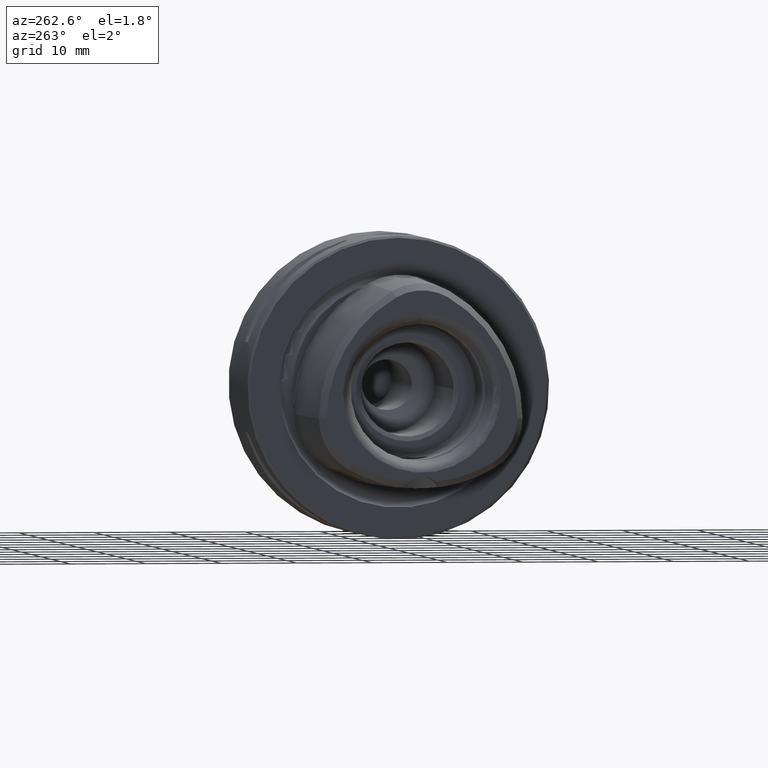
[diagram: clean part render]
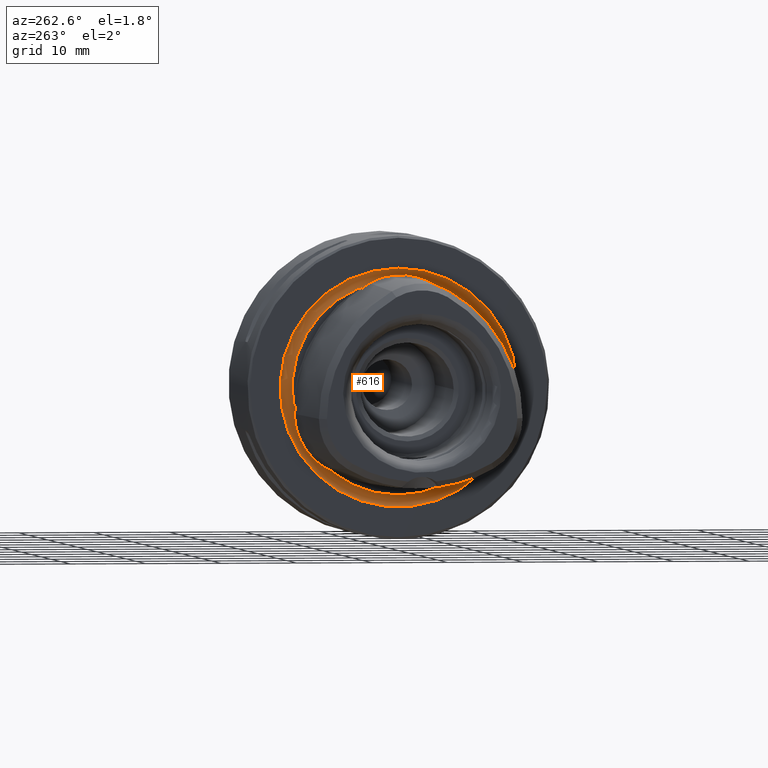
[diagram: same view with one face highlighted and labeled with its STEP entity id]
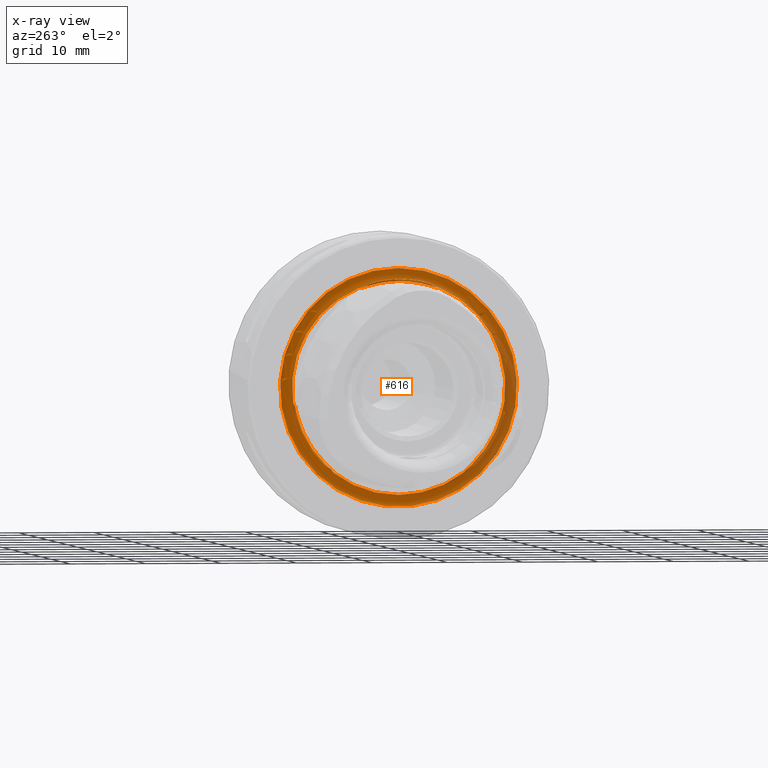
[diagram: x-ray of the same camera — body ghosted, the highlighted face saturated]
A machine part, auxiliary view. The second image highlights one B-rep face of the part: STEP entity #616.
The next image is the same camera in x-ray: the body ghosted, the highlighted face saturated — about 25% of this face is hidden behind the body in this view.
In plain terms, the highlighted toroidal blend (fillet) surface has major radius 15 mm and minor (blend) radius 1 mm.
Its self-contained STEP definition (entity closure, byte-faithful):
#616 = ADVANCED_FACE( '', ( #1280, #1281 ), #1282, .F. );
#1280 = FACE_OUTER_BOUND( '', #1951, .T. );
#1281 = FACE_OUTER_BOUND( '', #1952, .T. );
#1282 = TOROIDAL_SURFACE( '', #1953, 15.0000000000000, 1.00000000000000 );
#1951 = EDGE_LOOP( '', ( #3130, #3131, #3132, #3133, #3134, #3135, #3136, #3137, #3138, #3139, #3140, #3141, #3142, #3143, #3144, #3145, #3146, #3147, #3148, #3149, #3150, #3151, #3152, #3153, #3154, #3155, #3156, #3157, #3158, #3159 ) );
#1952 = EDGE_LOOP( '', ( #3160 ) );
#1953 = AXIS2_PLACEMENT_3D( '', #3161, #3162, #3163 );
#3130 = ORIENTED_EDGE( '', *, *, #3417, .F. );
#3131 = ORIENTED_EDGE( '', *, *, #3825, .F. );
#3132 = ORIENTED_EDGE( '', *, *, #3826, .F. );
#3133 = ORIENTED_EDGE( '', *, *, #3646, .F. );
#3134 = ORIENTED_EDGE( '', *, *, #3827, .F. );
#3135 = ORIENTED_EDGE( '', *, *, #3459, .F. );
#3136 = ORIENTED_EDGE( '', *, *, #3641, .T. );
#3137 = ORIENTED_EDGE( '', *, *, #3461, .F. );
#3138 = ORIENTED_EDGE( '', *, *, #3828, .F. );
#3139 = ORIENTED_EDGE( '', *, *, #3644, .F. );
#3140 = ORIENTED_EDGE( '', *, *, #3815, .F. );
#3141 = ORIENTED_EDGE( '', *, *, #3829, .F. );
#3142 = ORIENTED_EDGE( '', *, *, #3559, .F. );
#3143 = ORIENTED_EDGE( '', *, *, #3830, .F. );
#3144 = ORIENTED_EDGE( '', *, *, #3635, .F. );
#3145 = ORIENTED_EDGE( '', *, *, #3742, .F. );
#3146 = ORIENTED_EDGE( '', *, *, #3622, .T. );
#3147 = ORIENTED_EDGE( '', *, *, #3743, .F. );
#3148 = ORIENTED_EDGE( '', *, *, #3637, .F. );
#3149 = ORIENTED_EDGE( '', *, *, #3831, .F. );
#3150 = ORIENTED_EDGE( '', *, *, #3720, .F. );
#3151 = ORIENTED_EDGE( '', *, *, #3726, .F. );
#3152 = ORIENTED_EDGE( '', *, *, #3466, .F. );
#3153 = ORIENTED_EDGE( '', *, *, #3619, .F. );
#3154 = ORIENTED_EDGE( '', *, *, #3585, .F. );
#3155 = ORIENTED_EDGE( '', *, *, #3734, .F. );
#3156 = ORIENTED_EDGE( '', *, *, #3832, .T. );
#3157 = ORIENTED_EDGE( '', *, *, #3735, .F. );
#3158 = ORIENTED_EDGE( '', *, *, #3587, .F. );
#3159 = ORIENTED_EDGE( '', *, *, #3618, .F. );
#3160 = ORIENTED_EDGE( '', *, *, #3781, .T. );
#3161 = CARTESIAN_POINT( '', ( -0.600000000000000, 0.000000000000000, 0.000000000000000 ) );
#3162 = DIRECTION( '', ( -1.00000000000000, 0.000000000000000, 0.000000000000000 ) );
#3163 = DIRECTION( '', ( 0.000000000000000, 0.000000000000000, 1.00000000000000 ) );
#3417 = EDGE_CURVE( '', #3916, #3918, #3919, .T. );
#3459 = EDGE_CURVE( '', #3985, #3987, #3988, .T. );
#3461 = EDGE_CURVE( '', #3989, #3984, #3991, .T. );
#3466 = EDGE_CURVE( '', #3998, #3999, #4000, .T. );
#3559 = EDGE_CURVE( '', #4151, #4152, #4153, .T. );
#3585 = EDGE_CURVE( '', #4191, #4194, #4195, .T. );
#3587 = EDGE_CURVE( '', #4196, #4192, #4198, .T. );
#3618 = EDGE_CURVE( '', #3918, #4196, #4243, .T. );
#3619 = EDGE_CURVE( '', #4194, #3998, #4244, .T. );
#3622 = EDGE_CURVE( '', #4247, #4248, #4249, .T. );
#3635 = EDGE_CURVE( '', #4265, #4268, #4269, .T. );
#3637 = EDGE_CURVE( '', #4270, #4266, #4272, .T. );
#3641 = EDGE_CURVE( '', #3985, #3984, #4277, .T. );
#3644 = EDGE_CURVE( '', #4279, #4282, #4283, .T. );
#3646 = EDGE_CURVE( '', #4284, #4286, #4287, .T. );
#3720 = EDGE_CURVE( '', #4393, #4395, #4396, .T. );
#3726 = EDGE_CURVE( '', #3999, #4393, #4404, .T. );
#3734 = EDGE_CURVE( '', #4413, #4191, #4415, .T. );
#3735 = EDGE_CURVE( '', #4192, #4412, #4416, .T. );
#3742 = EDGE_CURVE( '', #4247, #4265, #4423, .T. );
#3743 = EDGE_CURVE( '', #4266, #4248, #4424, .T. );
#3781 = EDGE_CURVE( '', #4470, #4470, #4471, .T. );
#3815 = EDGE_CURVE( '', #4510, #4279, #4512, .T. );
#3825 = EDGE_CURVE( '', #4522, #3916, #4523, .T. );
#3826 = EDGE_CURVE( '', #4286, #4522, #4524, .T. );
#3827 = EDGE_CURVE( '', #3987, #4284, #4525, .T. );
#3828 = EDGE_CURVE( '', #4282, #3989, #4526, .T. );
#3829 = EDGE_CURVE( '', #4152, #4510, #4527, .T. );
#3830 = EDGE_CURVE( '', #4268, #4151, #4528, .T. );
#3831 = EDGE_CURVE( '', #4395, #4270, #4529, .T. );
#3832 = EDGE_CURVE( '', #4413, #4412, #4530, .T. );
#3916 = VERTEX_POINT( '', #4618 );
#3918 = VERTEX_POINT( '', #4623 );
#3919 = B_SPLINE_CURVE_WITH_KNOTS( '', 3, ( #4624, #4625, #4626, #4627 ), .UNSPECIFIED., .F., .F., ( 4, 4 ), ( 9.33628242778295E-007, 0.000208921527100443 ), .UNSPECIFIED. );
#3984 = VERTEX_POINT( '', #4920 );
#3985 = VERTEX_POINT( '', #4921 );
#3987 = VERTEX_POINT( '', #4923 );
#3988 = B_SPLINE_CURVE_WITH_KNOTS( '', 3, ( #4924, #4925, #4926, #4927 ), .UNSPECIFIED., .F., .F., ( 4, 4 ), ( 5.71224646423285E-007, 2.92105468877673E-005 ), .UNSPECIFIED. );
#3989 = VERTEX_POINT( '', #4928 );
#3991 = B_SPLINE_CURVE_WITH_KNOTS( '', 3, ( #4930, #4931, #4932, #4933 ), .UNSPECIFIED., .F., .F., ( 4, 4 ), ( 5.58141744954306E-007, 2.91974639862881E-005 ), .UNSPECIFIED. );
#3998 = VERTEX_POINT( '', #4940 );
#3999 = VERTEX_POINT( '', #4941 );
#4000 = B_SPLINE_CURVE_WITH_KNOTS( '', 3, ( #4942, #4943, #4944, #4945 ), .UNSPECIFIED., .F., .F., ( 4, 4 ), ( 2.06699946779758E-007, 0.000208194856561779 ), .UNSPECIFIED. );
#4151 = VERTEX_POINT( '', #5255 );
#4152 = VERTEX_POINT( '', #5256 );
#4153 = B_SPLINE_CURVE_WITH_KNOTS( '', 3, ( #5257, #5258, #5259, #5260 ), .UNSPECIFIED., .F., .F., ( 4, 4 ), ( 5.35187895235768E-006, 0.000213340008543988 ), .UNSPECIFIED. );
#4191 = VERTEX_POINT( '', #5314 );
#4192 = VERTEX_POINT( '', #5315 );
#4194 = VERTEX_POINT( '', #5317 );
#4195 = B_SPLINE_CURVE_WITH_KNOTS( '', 3, ( #5318, #5319, #5320, #5321 ), .UNSPECIFIED., .F., .F., ( 4, 4 ), ( 4.90671286945036E-007, 0.000557014854143242 ), .UNSPECIFIED. );
#4196 = VERTEX_POINT( '', #5322 );
#4198 = B_SPLINE_CURVE_WITH_KNOTS( '', 3, ( #5324, #5325, #5326, #5327 ), .UNSPECIFIED., .F., .F., ( 4, 4 ), ( 6.68459506126783E-007, 0.000557192642370131 ), .UNSPECIFIED. );
#4243 = B_SPLINE_CURVE_WITH_KNOTS( '', 3, ( #5395, #5396, #5397, #5398, #5399, #5400, #5401, #5402, #5403, #5404, #5405, #5406, #5407, #5408, #5409, #5410 ), .UNSPECIFIED., .F., .F., ( 4, 2, 2, 2, 2, 2, 2, 4 ), ( 5.27534257230583E-006, 0.000439431182513446, 0.000873587022454585, 0.00109066494242516, 0.00130774286239573, 0.00141628182238101, 0.00152482078236630, 0.00174189870233687 ), .UNSPECIFIED. );
#4244 = B_SPLINE_CURVE_WITH_KNOTS( '', 3, ( #5411, #5412, #5413, #5414, #5415, #5416, #5417, #5418, #5419, #5420, #5421, #5422, #5423, #5424, #5425, #5426 ), .UNSPECIFIED., .F., .F., ( 4, 2, 2, 2, 2, 2, 2, 4 ), ( 3.31038130401016E-007, 0.000221185428670260, 0.000331612623940190, 0.000442039819210119, 0.000662894209749979, 0.000883748600289838, 0.00132545738136956, 0.00176716616244927 ), .UNSPECIFIED. );
#4247 = VERTEX_POINT( '', #5429 );
#4248 = VERTEX_POINT( '', #5430 );
#4249 = CIRCLE( '', #5431, 14.1339745962156 );
#4265 = VERTEX_POINT( '', #5450 );
#4266 = VERTEX_POINT( '', #5451 );
#4268 = VERTEX_POINT( '', #5453 );
#4269 = B_SPLINE_CURVE_WITH_KNOTS( '', 3, ( #5454, #5455, #5456, #5457 ), .UNSPECIFIED., .F., .F., ( 4, 4 ), ( 4.90671279800562E-007, 0.000557014854140371 ), .UNSPECIFIED. );
#4270 = VERTEX_POINT( '', #5458 );
#4272 = B_SPLINE_CURVE_WITH_KNOTS( '', 3, ( #5460, #5461, #5462, #5463 ), .UNSPECIFIED., .F., .F., ( 4, 4 ), ( 6.68459481472196E-007, 0.000557192642370148 ), .UNSPECIFIED. );
#4277 = CIRCLE( '', #5468, 14.1339745962156 );
#4279 = VERTEX_POINT( '', #5470 );
#4282 = VERTEX_POINT( '', #5474 );
#4283 = B_SPLINE_CURVE_WITH_KNOTS( '', 3, ( #5475, #5476, #5477, #5478, #5479, #5480, #5481, #5482, #5483, #5484, #5485, #5486, #5487, #5488, #5489, #5490 ), .UNSPECIFIED., .F., .F., ( 4, 2, 2, 2, 2, 2, 2, 4 ), ( 2.05285835831506E-007, 0.000435090445997375, 0.000869975606158918, 0.00108741818623969, 0.00130486076632046, 0.00141358205636085, 0.00152230334640123, 0.00173974592648201 ), .UNSPECIFIED. );
#4284 = VERTEX_POINT( '', #5491 );
#4286 = VERTEX_POINT( '', #5493 );
#4287 = B_SPLINE_CURVE_WITH_KNOTS( '', 3, ( #5494, #5495, #5496, #5497, #5498, #5499, #5500, #5501, #5502, #5503, #5504, #5505, #5506, #5507, #5508, #5509 ), .UNSPECIFIED., .F., .F., ( 4, 2, 2, 2, 2, 2, 2, 4 ), ( 3.31038112697755E-007, 0.000221187629629145, 0.000331615925387369, 0.000442044221145593, 0.000662900812662039, 0.000883757404178485, 0.00132547058721138, 0.00176718377024427 ), .UNSPECIFIED. );
#4393 = VERTEX_POINT( '', #5671 );
#4395 = VERTEX_POINT( '', #5676 );
#4396 = B_SPLINE_CURVE_WITH_KNOTS( '', 3, ( #5677, #5678, #5679, #5680 ), .UNSPECIFIED., .F., .F., ( 4, 4 ), ( 0.00829155263950419, 0.00849941306684054 ), .UNSPECIFIED. );
#4404 = CIRCLE( '', #5689, 14.2928932188134 );
#4412 = VERTEX_POINT( '', #5703 );
#4413 = VERTEX_POINT( '', #5704 );
#4415 = B_SPLINE_CURVE_WITH_KNOTS( '', 3, ( #5706, #5707, #5708, #5709 ), .UNSPECIFIED., .F., .F., ( 4, 4 ), ( 5.71224646883351E-007, 2.92105469043718E-005 ), .UNSPECIFIED. );
#4416 = B_SPLINE_CURVE_WITH_KNOTS( '', 3, ( #5710, #5711, #5712, #5713 ), .UNSPECIFIED., .F., .F., ( 4, 4 ), ( 5.58141744956783E-007, 2.91974639863128E-005 ), .UNSPECIFIED. );
#4423 = B_SPLINE_CURVE_WITH_KNOTS( '', 3, ( #5726, #5727, #5728, #5729 ), .UNSPECIFIED., .F., .F., ( 4, 4 ), ( 5.71224646879371E-007, 2.92105469148465E-005 ), .UNSPECIFIED. );
#4424 = B_SPLINE_CURVE_WITH_KNOTS( '', 3, ( #5730, #5731, #5732, #5733 ), .UNSPECIFIED., .F., .F., ( 4, 4 ), ( 5.58141744953117E-007, 2.91974639862801E-005 ), .UNSPECIFIED. );
#4470 = VERTEX_POINT( '', #5891 );
#4471 = CIRCLE( '', #5892, 15.7071067811866 );
#4510 = VERTEX_POINT( '', #5937 );
#4512 = B_SPLINE_CURVE_WITH_KNOTS( '', 3, ( #5942, #5943, #5944, #5945 ), .UNSPECIFIED., .F., .F., ( 4, 4 ), ( 9.33664659199684E-007, 0.000208921821304730 ), .UNSPECIFIED. );
#4522 = VERTEX_POINT( '', #5955 );
#4523 = CIRCLE( '', #5956, 14.2928932188134 );
#4524 = B_SPLINE_CURVE_WITH_KNOTS( '', 3, ( #5957, #5958, #5959, #5960 ), .UNSPECIFIED., .F., .F., ( 4, 4 ), ( 1.44976899243437E-005, 0.000222485588788982 ), .UNSPECIFIED. );
#4525 = B_SPLINE_CURVE_WITH_KNOTS( '', 3, ( #5961, #5962, #5963, #5964 ), .UNSPECIFIED., .F., .F., ( 4, 4 ), ( 4.90671300599114E-007, 0.000557014854185001 ), .UNSPECIFIED. );
#4526 = B_SPLINE_CURVE_WITH_KNOTS( '', 3, ( #5965, #5966, #5967, #5968 ), .UNSPECIFIED., .F., .F., ( 4, 4 ), ( 6.68459504508361E-007, 0.000557192642370113 ), .UNSPECIFIED. );
#4527 = CIRCLE( '', #5969, 14.2928932188134 );
#4528 = B_SPLINE_CURVE_WITH_KNOTS( '', 3, ( #5970, #5971, #5972, #5973, #5974, #5975, #5976, #5977, #5978, #5979, #5980, #5981, #5982, #5983, #5984, #5985 ), .UNSPECIFIED., .F., .F., ( 4, 2, 2, 2, 2, 2, 2, 4 ), ( 3.31038131724524E-007, 0.000221191615043825, 0.000331621903499875, 0.000442052191955925, 0.000662912768868024, 0.000883773345780123, 0.00132549449960432, 0.00176721565342852 ), .UNSPECIFIED. );
#4529 = B_SPLINE_CURVE_WITH_KNOTS( '', 3, ( #5986, #5987, #5988, #5989, #5990, #5991, #5992, #5993, #5994, #5995, #5996, #5997, #5998, #5999, #6000, #6001 ), .UNSPECIFIED., .F., .F., ( 4, 2, 2, 2, 2, 2, 2, 4 ), ( 1.45002943954960E-005, 0.000448871561745037, 0.000883242829094578, 0.00110042846276935, 0.00131761409644412, 0.00142620691328150, 0.00153479973011888, 0.00175198536379365 ), .UNSPECIFIED. );
#4530 = CIRCLE( '', #6002, 14.1339745962156 );
#4618 = CARTESIAN_POINT( '', ( -1.30710678118655, 3.83711151640159, 13.7682014720552 ) );
#4623 = CARTESIAN_POINT( '', ( -1.25860495762130, 4.01411838885947, 13.6703484507252 ) );
#4624 = CARTESIAN_POINT( '', ( -1.30710678118660, 3.83711151640161, 13.7682014720552 ) );
#4625 = CARTESIAN_POINT( '', ( -1.29224973577150, 3.89678710707447, 13.7361470268337 ) );
#4626 = CARTESIAN_POINT( '', ( -1.27618524792274, 3.95580576346401, 13.7035077167449 ) );
#4627 = CARTESIAN_POINT( '', ( -1.25860495762128, 4.01411838885946, 13.6703484507252 ) );
#4920 = CARTESIAN_POINT( '', ( -0.100000000000000, -14.0061484399330, -1.89658739978658 ) );
#4921 = CARTESIAN_POINT( '', ( -0.0999999999999981, -5.36058135125385, 13.0779740580510 ) );
#4923 = CARTESIAN_POINT( '', ( -0.110143799932860, -5.38257401105697, 13.0626888686132 ) );
#4924 = CARTESIAN_POINT( '', ( -0.0999999999999879, -5.36058135125386, 13.0779740580511 ) );
#4925 = CARTESIAN_POINT( '', ( -0.103343192888210, -5.36792813814522, 13.0728766055121 ) );
#4926 = CARTESIAN_POINT( '', ( -0.106723774843390, -5.37525923766450, 13.0677813943338 ) );
#4927 = CARTESIAN_POINT( '', ( -0.110143799932852, -5.38257401105698, 13.0626888686132 ) );
#4928 = CARTESIAN_POINT( '', ( -0.110143799932862, -14.0039074074797, -1.86989860298139 ) );
#4930 = CARTESIAN_POINT( '', ( -0.110143799932852, -14.0039074074797, -1.86989860298139 ) );
#4931 = CARTESIAN_POINT( '', ( -0.106723774843390, -14.0046602774270, -1.87877964542249 ) );
#4932 = CARTESIAN_POINT( '', ( -0.103343192888205, -14.0054073099854, -1.88767616943299 ) );
#4933 = CARTESIAN_POINT( '', ( -0.0999999999999837, -14.0061484399330, -1.89658739978657 ) );
#4940 = CARTESIAN_POINT( '', ( -1.25860495762905, 13.8459282313428, -3.35884572684161 ) );
#4941 = CARTESIAN_POINT( '', ( -1.30710678118655, 13.8421679974229, -3.56106468567000 ) );
#4942 = CARTESIAN_POINT( '', ( -1.25860495762903, 13.8459282313428, -3.35884572684161 ) );
#4943 = CARTESIAN_POINT( '', ( -1.27618594567218, 13.8454886679437, -3.42592823712986 ) );
#4944 = CARTESIAN_POINT( '', ( -1.29225029445901, 13.8442457507581, -3.49335943164933 ) );
#4945 = CARTESIAN_POINT( '', ( -1.30710678118659, 13.8421679974229, -3.56106468566999 ) );
#5255 = CARTESIAN_POINT( '', ( -1.25860495762127, -9.83180984248346, -10.3115027239132 ) );
#5256 = CARTESIAN_POINT( '', ( -1.30710678118655, -10.0050564810213, -10.2071367863852 ) );
#5257 = CARTESIAN_POINT( '', ( -1.25860495762462, -9.83180984248320, -10.3115027239143 ) );
#5258 = CARTESIAN_POINT( '', ( -1.27618569509088, -9.88968439396029, -10.2775812791806 ) );
#5259 = CARTESIAN_POINT( '', ( -1.29225009381330, -9.94746010987455, -10.2427892820683 ) );
#5260 = CARTESIAN_POINT( '', ( -1.30710678118659, -10.0050564810213, -10.2071367863852 ) );
#5314 = CARTESIAN_POINT( '', ( -0.110143799938644, 14.0039074074785, -1.86989860296635 ) );
#5315 = CARTESIAN_POINT( '', ( -0.110143799932866, 5.38257401105700, 13.0626888686132 ) );
#5317 = CARTESIAN_POINT( '', ( -0.299999999993735, 13.8449612072687, -2.36830596139360 ) );
#5318 = CARTESIAN_POINT( '', ( -0.110143799932649, 14.0039074074794, -1.86989860296893 ) );
#5319 = CARTESIAN_POINT( '', ( -0.185739680158362, 13.9399633572454, -2.02784880291634 ) );
#5320 = CARTESIAN_POINT( '', ( -0.244490629325768, 13.8919256888756, -2.19728882859324 ) );
#5321 = CARTESIAN_POINT( '', ( -0.299999999994039, 13.8449612072685, -2.36830596139342 ) );
#5322 = CARTESIAN_POINT( '', ( -0.299999999999359, 4.87146747711596, 13.1742411006061 ) );
#5324 = CARTESIAN_POINT( '', ( -0.299999999999664, 4.87146747711601, 13.1742411006058 ) );
#5325 = CARTESIAN_POINT( '', ( -0.244490629331036, 5.04305489940915, 13.1294049683522 ) );
#5326 = CARTESIAN_POINT( '', ( -0.185739680163260, 5.21381310025044, 13.0862867966596 ) );
#5327 = CARTESIAN_POINT( '', ( -0.110143799937174, 5.38257401105750, 13.0626888686081 ) );
#5395 = CARTESIAN_POINT( '', ( -1.25860495762130, 4.01411838885947, 13.6703484507252 ) );
#5396 = CARTESIAN_POINT( '', ( -1.22166144012630, 4.13665751987133, 13.6006670118345 ) );
#5397 = CARTESIAN_POINT( '', ( -1.18057766244981, 4.25706957747254, 13.5305752802980 ) );
#5398 = CARTESIAN_POINT( '', ( -1.08502957140298, 4.49212906750069, 13.3909279127406 ) );
#5399 = CARTESIAN_POINT( '', ( -1.03131292460054, 4.60700812486416, 13.3211904813246 ) );
#5400 = CARTESIAN_POINT( '', ( -0.928082404441620, 4.77115616492069, 13.2201600590080 ) );
#5401 = CARTESIAN_POINT( '', ( -0.889276428300953, 4.82523705869248, 13.1866234793369 ) );
#5402 = CARTESIAN_POINT( '', ( -0.798409141487318, 4.92299560129053, 13.1260417199157 ) );
#5403 = CARTESIAN_POINT( '', ( -0.745405457561452, 4.96910032875316, 13.0974257158757 ) );
#5404 = CARTESIAN_POINT( '', ( -0.644671225565459, 5.01071465013178, 13.0730657487877 ) );
#5405 = CARTESIAN_POINT( '', ( -0.607561649012590, 5.01906340682050, 13.0686647022981 ) );
#5406 = CARTESIAN_POINT( '', ( -0.532356163542984, 5.01845135412066, 13.0713209100849 ) );
#5407 = CARTESIAN_POINT( '', ( -0.495675768244874, 5.00952166312593, 13.0783141776245 ) );
#5408 = CARTESIAN_POINT( '', ( -0.397103663194222, 4.96723173075851, 13.1090665182288 ) );
#5409 = CARTESIAN_POINT( '', ( -0.344924782331514, 4.92106153304456, 13.1408394610733 ) );
#5410 = CARTESIAN_POINT( '', ( -0.299999999994616, 4.87146747711951, 13.1742411006035 ) );
#5411 = CARTESIAN_POINT( '', ( -0.299999999998950, 13.8449612072630, -2.36830596139895 ) );
#5412 = CARTESIAN_POINT( '', ( -0.344487199720072, 13.8408717909624, -2.30923644573940 ) );
#5413 = CARTESIAN_POINT( '', ( -0.396023056860594, 13.8364927026044, -2.25393764446260 ) );
#5414 = CARTESIAN_POINT( '', ( -0.493420572462156, 13.8310233430339, -2.20169454383302 ) );
#5415 = CARTESIAN_POINT( '', ( -0.529450687120095, 13.8294338542718, -2.19021630897708 ) );
#5416 = CARTESIAN_POINT( '', ( -0.603941700938255, 13.8273911146160, -2.18724450056732 ) );
#5417 = CARTESIAN_POINT( '', ( -0.640788775481964, 13.8269904771349, -2.19593394028276 ) );
#5418 = CARTESIAN_POINT( '', ( -0.741076582444953, 13.8271729737622, -2.24205582570963 ) );
#5419 = CARTESIAN_POINT( '', ( -0.794758970874236, 13.8288632333133, -2.29565513382129 ) );
#5420 = CARTESIAN_POINT( '', ( -0.886981249812997, 13.8324564572561, -2.41098231564201 ) );
#5421 = CARTESIAN_POINT( '', ( -0.925175880385749, 13.8344243106087, -2.47323828879490 ) );
#5422 = CARTESIAN_POINT( '', ( -1.02882620984226, 13.8398545386680, -2.66517762488817 ) );
#5423 = CARTESIAN_POINT( '', ( -1.08356887421970, 13.8428837803155, -2.80128314112201 ) );
#5424 = CARTESIAN_POINT( '', ( -1.18019212268346, 13.8463551208104, -3.07716315391317 ) );
#5425 = CARTESIAN_POINT( '', ( -1.22151603287420, 13.8468555360989, -3.21732818696721 ) );
#5426 = CARTESIAN_POINT( '', ( -1.25860495762908, 13.8459282313428, -3.35884572684160 ) );
#5429 = CARTESIAN_POINT( '', ( -0.0999999999999982, -8.64556708867916, -11.1813866582645 ) );
#5430 = CARTESIAN_POINT( '', ( -0.100000000000002, 8.64556708867914, -11.1813866582645 ) );
#5431 = AXIS2_PLACEMENT_3D( '', #6360, #6361, #6362 );
#5450 = CARTESIAN_POINT( '', ( -0.110143799942403, -8.62133339640029, -11.1927902656424 ) );
#5451 = CARTESIAN_POINT( '', ( -0.110143799932862, 8.62133339642278, -11.1927902656318 ) );
#5453 = CARTESIAN_POINT( '', ( -0.299999999992854, -8.97349373013338, -10.8059351392099 ) );
#5454 = CARTESIAN_POINT( '', ( -0.110143799929729, -8.62133339640778, -11.1927902656430 ) );
#5455 = CARTESIAN_POINT( '', ( -0.185739680156549, -8.72615025697828, -11.0584379937445 ) );
#5456 = CARTESIAN_POINT( '', ( -0.244490629324413, -8.84887078944842, -10.9321161397582 ) );
#5457 = CARTESIAN_POINT( '', ( -0.299999999993164, -8.97349373013312, -10.8059351392098 ) );
#5458 = CARTESIAN_POINT( '', ( -0.300000000006746, 8.97349373016456, -10.8059351391783 ) );
#5460 = CARTESIAN_POINT( '', ( -0.300000000007057, 8.97349373016431, -10.8059351391783 ) );
#5461 = CARTESIAN_POINT( '', ( -0.244490629336429, 8.84887078947276, -10.9321161397327 ) );
#5462 = CARTESIAN_POINT( '', ( -0.185739680166622, 8.72615025699558, -11.0584379937248 ) );
#5463 = CARTESIAN_POINT( '', ( -0.110143799937192, 8.62133339641813, -11.1927902656297 ) );
#5468 = AXIS2_PLACEMENT_3D( '', #6387, #6388, #6389 );
#5470 = CARTESIAN_POINT( '', ( -1.25860495762131, -13.8459282313430, -3.35884572681208 ) );
#5474 = CARTESIAN_POINT( '', ( -0.299999999999846, -13.8449612072635, -2.36830596141246 ) );
#5475 = CARTESIAN_POINT( '', ( -1.25860495762190, -13.8459282313432, -3.35884572681185 ) );
#5476 = CARTESIAN_POINT( '', ( -1.22159182754922, -13.8468536410652, -3.21761739125171 ) );
#5477 = CARTESIAN_POINT( '', ( -1.18042544210585, -13.8463547196578, -3.07803961820259 ) );
#5478 = CARTESIAN_POINT( '', ( -1.08466021530325, -13.8429316514212, -2.80419175376783 ) );
#5479 = CARTESIAN_POINT( '', ( -1.03081734855054, -13.8399653020331, -2.66962545162527 ) );
#5480 = CARTESIAN_POINT( '', ( -0.927262002730452, -13.8345305215735, -2.47673776499577 ) );
#5481 = CARTESIAN_POINT( '', ( -0.888380430899844, -13.8325244122542, -2.41311925709312 ) );
#5482 = CARTESIAN_POINT( '', ( -0.796758379030415, -13.8289281864286, -2.29778234677577 ) );
#5483 = CARTESIAN_POINT( '', ( -0.743349689156993, -13.8272008321430, -2.24352434464022 ) );
#5484 = CARTESIAN_POINT( '', ( -0.641642294475334, -13.8269805141700, -2.19612105471761 ) );
#5485 = CARTESIAN_POINT( '', ( -0.604865602745500, -13.8273765524917, -2.18738857832354 ) );
#5486 = CARTESIAN_POINT( '', ( -0.530591272395451, -13.8293920980810, -2.18999482915802 ) );
#5487 = CARTESIAN_POINT( '', ( -0.494182700815961, -13.8309860631506, -2.20138621176629 ) );
#5488 = CARTESIAN_POINT( '', ( -0.396426231636096, -13.8364591889802, -2.25352339506645 ) );
#5489 = CARTESIAN_POINT( '', ( -0.344653437646617, -13.8408565098014, -2.30901571723369 ) );
#5490 = CARTESIAN_POINT( '', ( -0.300000000000116, -13.8449612072634, -2.36830596141273 ) );
#5491 = CARTESIAN_POINT( '', ( -0.300000000005473, -4.87146747709706, 13.1742411006110 ) );
#5493 = CARTESIAN_POINT( '', ( -1.25860495762195, -4.01411838885728, 13.6703484507264 ) );
#5494 = CARTESIAN_POINT( '', ( -0.299999999988244, -4.87146747711405, 13.1742411006072 ) );
#5495 = CARTESIAN_POINT( '', ( -0.344487643055983, -4.92057895954227, 13.1411644747444 ) );
#5496 = CARTESIAN_POINT( '', ( -0.396024077641149, -4.96628004051935, 13.1097223505531 ) );
#5497 = CARTESIAN_POINT( '', ( -0.493422973968408, -5.00878906213683, 13.0788642504654 ) );
#5498 = CARTESIAN_POINT( '', ( -0.529453728333556, -5.01793451152903, 13.0717487398784 ) );
#5499 = CARTESIAN_POINT( '', ( -0.603945340902678, -5.01948584696183, 13.0684943840574 ) );
#5500 = CARTESIAN_POINT( '', ( -0.640792694368079, -5.01175962557576, 13.0724925470800 ) );
#5501 = CARTESIAN_POINT( '', ( -0.741080737880834, -4.97190649061446, 13.0957126157173 ) );
#5502 = CARTESIAN_POINT( '', ( -0.794763058405419, -4.92633239524479, 13.1239766325933 ) );
#5503 = CARTESIAN_POINT( '', ( -0.886985433788872, -4.82825105546952, 13.1847530974252 ) );
#5504 = CARTESIAN_POINT( '', ( -0.925179984464278, -4.77531914275843, 13.2175856477608 ) );
#5505 = CARTESIAN_POINT( '', ( -1.02883039702554, -4.61180783639187, 13.3182592596079 ) );
#5506 = CARTESIAN_POINT( '', ( -1.08357354516105, -4.49544917730777, 13.3889368155380 ) );
#5507 = CARTESIAN_POINT( '', ( -1.18019537071212, -4.25826700799301, 13.5298821834197 ) );
#5508 = CARTESIAN_POINT( '', ( -1.22151770816970, -4.13713426898082, 13.6003959101573 ) );
#5509 = CARTESIAN_POINT( '', ( -1.25860495762196, -4.01411838885729, 13.6703484507264 ) );
#5671 = CARTESIAN_POINT( '', ( -1.30710678118655, 10.0050564810213, -10.2071367863852 ) );
#5676 = CARTESIAN_POINT( '', ( -1.25860495762129, 9.83180984248348, -10.3115027239132 ) );
#5677 = CARTESIAN_POINT( '', ( -1.30710678118656, 10.0050564810213, -10.2071367863852 ) );
#5678 = CARTESIAN_POINT( '', ( -1.29225230269561, 9.94746867326448, -10.2427839812791 ) );
#5679 = CARTESIAN_POINT( '', ( -1.27615797739746, 9.88959314927362, -10.2776347595353 ) );
#5680 = CARTESIAN_POINT( '', ( -1.25860495762127, 9.83180984248348, -10.3115027239132 ) );
#5689 = AXIS2_PLACEMENT_3D( '', #6498, #6499, #6500 );
#5703 = CARTESIAN_POINT( '', ( -0.100000000000000, 5.36058135125388, 13.0779740580510 ) );
#5704 = CARTESIAN_POINT( '', ( -0.0999999999999967, 14.0061484399330, -1.89658739978657 ) );
#5706 = CARTESIAN_POINT( '', ( -0.0999999999999945, 14.0061484399330, -1.89658739978656 ) );
#5707 = CARTESIAN_POINT( '', ( -0.103343192890101, 14.0054073099849, -1.88767616942795 ) );
#5708 = CARTESIAN_POINT( '', ( -0.106723774847200, 14.0046602774261, -1.87877964541244 ) );
#5709 = CARTESIAN_POINT( '', ( -0.110143799938635, 14.0039074074785, -1.86989860296634 ) );
#5710 = CARTESIAN_POINT( '', ( -0.110143799932868, 5.38257401105700, 13.0626888686132 ) );
#5711 = CARTESIAN_POINT( '', ( -0.106723774843404, 5.37525923766453, 13.0677813943338 ) );
#5712 = CARTESIAN_POINT( '', ( -0.103343192888219, 5.36792813814524, 13.0728766055121 ) );
#5713 = CARTESIAN_POINT( '', ( -0.0999999999999951, 5.36058135125388, 13.0779740580510 ) );
#5726 = CARTESIAN_POINT( '', ( -0.0999999999999812, -8.64556708867916, -11.1813866582645 ) );
#5727 = CARTESIAN_POINT( '', ( -0.103343192891311, -8.63747917183263, -11.1852004360826 ) );
#5728 = CARTESIAN_POINT( '', ( -0.106723774849675, -8.62940103974747, -11.1890017489184 ) );
#5729 = CARTESIAN_POINT( '', ( -0.110143799942390, -8.62133339640029, -11.1927902656424 ) );
#5730 = CARTESIAN_POINT( '', ( -0.110143799932852, 8.62133339642278, -11.1927902656319 ) );
#5731 = CARTESIAN_POINT( '', ( -0.106723774843391, 8.62940103976248, -11.1890017489113 ) );
#5732 = CARTESIAN_POINT( '', ( -0.103343192888212, 8.63747917184013, -11.1852004360791 ) );
#5733 = CARTESIAN_POINT( '', ( -0.0999999999999914, 8.64556708867914, -11.1813866582645 ) );
#5891 = CARTESIAN_POINT( '', ( 0.107106781186549, 0.000000000000000, 15.7071067811866 ) );
#5892 = AXIS2_PLACEMENT_3D( '', #6539, #6540, #6541 );
#5937 = CARTESIAN_POINT( '', ( -1.30710678118655, -13.8421679974229, -3.56106468567002 ) );
#5942 = CARTESIAN_POINT( '', ( -1.30710678118659, -13.8421679974229, -3.56106468567001 ) );
#5943 = CARTESIAN_POINT( '', ( -1.29225029445682, -13.8442457507584, -3.49335943163941 ) );
#5944 = CARTESIAN_POINT( '', ( -1.27618594566746, -13.8454886679440, -3.42592823711008 ) );
#5945 = CARTESIAN_POINT( '', ( -1.25860495762129, -13.8459282313430, -3.35884572681209 ) );
#5955 = CARTESIAN_POINT( '', ( -1.30710678118655, -3.83711151639185, 13.7682014720579 ) );
#5956 = AXIS2_PLACEMENT_3D( '', #6572, #6573, #6574 );
#5957 = CARTESIAN_POINT( '', ( -1.25860495762193, -4.01411838885727, 13.6703484507264 ) );
#5958 = CARTESIAN_POINT( '', ( -1.27618524792394, -3.95580576345985, 13.7035077167472 ) );
#5959 = CARTESIAN_POINT( '', ( -1.29224973577316, -3.89678710706829, 13.7361470268371 ) );
#5960 = CARTESIAN_POINT( '', ( -1.30710678118864, -3.83711151639337, 13.7682014720596 ) );
#5961 = CARTESIAN_POINT( '', ( -0.110143799937191, -5.38257401105747, 13.0626888686081 ) );
#5962 = CARTESIAN_POINT( '', ( -0.185739680165899, -5.21381310024456, 13.0862867966605 ) );
#5963 = CARTESIAN_POINT( '', ( -0.244490629335440, -5.04305489939682, 13.1294049683551 ) );
#5964 = CARTESIAN_POINT( '', ( -0.300000000005787, -4.87146747709712, 13.1742411006108 ) );
#5965 = CARTESIAN_POINT( '', ( -0.300000000000167, -13.8449612072633, -2.36830596141227 ) );
#5966 = CARTESIAN_POINT( '', ( -0.244490629331410, -13.8919256888709, -2.19728882860920 ) );
#5967 = CARTESIAN_POINT( '', ( -0.185739680163501, -13.9399633572411, -2.02784880292933 ) );
#5968 = CARTESIAN_POINT( '', ( -0.110143799937201, -14.0039074074756, -1.86989860297841 ) );
#5969 = AXIS2_PLACEMENT_3D( '', #6575, #6576, #6577 );
#5970 = CARTESIAN_POINT( '', ( -0.299999999999735, -8.97349373013616, -10.8059351392008 ) );
#5971 = CARTESIAN_POINT( '', ( -0.344488445855897, -8.92029183063406, -10.8319290867260 ) );
#5972 = CARTESIAN_POINT( '', ( -0.396025926046263, -8.87021069216640, -10.8557867493169 ) );
#5973 = CARTESIAN_POINT( '', ( -0.493427322551253, -8.82223250502029, -10.8771714045890 ) );
#5974 = CARTESIAN_POINT( '', ( -0.529459235218369, -8.81149801965481, -10.8815335807979 ) );
#5975 = CARTESIAN_POINT( '', ( -0.603951931962349, -8.80790582398857, -10.8812489539380 ) );
#5976 = CARTESIAN_POINT( '', ( -0.640799790421018, -8.81523264893167, -10.8765563150912 ) );
#5977 = CARTESIAN_POINT( '', ( -0.741088262259771, -8.85527157994367, -10.8536508979106 ) );
#5978 = CARTESIAN_POINT( '', ( -0.794770459796552, -8.90253763576869, -10.8283137317701 ) );
#5979 = CARTESIAN_POINT( '', ( -0.886993009820069, -9.00421543913193, -10.7737593451052 ) );
#5980 = CARTESIAN_POINT( '', ( -0.925187415808357, -9.05911630103398, -10.7443346410709 ) );
#5981 = CARTESIAN_POINT( '', ( -1.02883797885491, -9.22806166838438, -10.6530643532528 ) );
#5982 = CARTESIAN_POINT( '', ( -1.08358200283979, -9.34745396218270, -10.5876310073880 ) );
#5983 = CARTESIAN_POINT( '', ( -1.18020125150260, -9.58810475086094, -10.4526990621198 ) );
#5984 = CARTESIAN_POINT( '', ( -1.22152074137041, -9.70973121031541, -10.3830554784238 ) );
#5985 = CARTESIAN_POINT( '', ( -1.25860495762129, -9.83180984248347, -10.3115027239132 ) );
#5986 = CARTESIAN_POINT( '', ( -1.25860495762130, 9.83180984248349, -10.3115027239132 ) );
#5987 = CARTESIAN_POINT( '', ( -1.22165632899071, 9.71017755522704, -10.3827938666469 ) );
#5988 = CARTESIAN_POINT( '', ( -1.18056333830587, 9.58924167109543, -10.4520442533443 ) );
#5989 = CARTESIAN_POINT( '', ( -1.08497092412283, 9.35068256576211, -10.5858377698017 ) );
#5990 = CARTESIAN_POINT( '', ( -1.03122558586213, 9.23278614002410, -10.6504904077871 ) );
#5991 = CARTESIAN_POINT( '', ( -0.927862407774042, 9.06308295475470, -10.7422019306217 ) );
#5992 = CARTESIAN_POINT( '', ( -0.889023523754073, 9.00700444993537, -10.7722653658382 ) );
#5993 = CARTESIAN_POINT( '', ( -0.798192856676656, 8.90579267291635, -10.8265649725823 ) );
#5994 = CARTESIAN_POINT( '', ( -0.745077451110503, 8.85792101021239, -10.8522060538950 ) );
#5995 = CARTESIAN_POINT( '', ( -0.644320469483470, 8.81615206640781, -10.8759977496107 ) );
#5996 = CARTESIAN_POINT( '', ( -0.607289433499464, 8.80821804045729, -10.8809993433913 ) );
#5997 = CARTESIAN_POINT( '', ( -0.531920903916372, 8.81094121435963, -10.8817434829337 ) );
#5998 = CARTESIAN_POINT( '', ( -0.495430636147639, 8.82148356625437, -10.8774908026203 ) );
#5999 = CARTESIAN_POINT( '', ( -0.397016236654384, 8.86926483577378, -10.8562360937248 ) );
#6000 = CARTESIAN_POINT( '', ( -0.344881604157931, 8.91982166881556, -10.8321588033669 ) );
#6001 = CARTESIAN_POINT( '', ( -0.299999999986901, 8.97349373015113, -10.8059351391935 ) );
#6002 = AXIS2_PLACEMENT_3D( '', #6578, #6579, #6580 );
#6360 = CARTESIAN_POINT( '', ( -0.100000000000000, 0.000000000000000, 4.25877975226208E-017 ) );
#6361 = DIRECTION( '', ( 1.00000000000000, 0.000000000000000, 8.51755950452415E-017 ) );
#6362 = DIRECTION( '', ( 8.51755950452415E-017, 0.000000000000000, -1.00000000000000 ) );
#6387 = CARTESIAN_POINT( '', ( -0.100000000000000, 0.000000000000000, 4.25877975226208E-017 ) );
#6388 = DIRECTION( '', ( 1.00000000000000, 0.000000000000000, 8.51755950452415E-017 ) );
#6389 = DIRECTION( '', ( 8.51755950452415E-017, 0.000000000000000, -1.00000000000000 ) );
#6498 = CARTESIAN_POINT( '', ( -1.30710678118655, 0.000000000000000, 0.000000000000000 ) );
#6499 = DIRECTION( '', ( -1.00000000000000, 0.000000000000000, 0.000000000000000 ) );
#6500 = DIRECTION( '', ( 0.000000000000000, 0.000000000000000, 1.00000000000000 ) );
#6539 = CARTESIAN_POINT( '', ( 0.107106781186549, 0.000000000000000, 0.000000000000000 ) );
#6540 = DIRECTION( '', ( -1.00000000000000, 0.000000000000000, 0.000000000000000 ) );
#6541 = DIRECTION( '', ( 0.000000000000000, 0.000000000000000, 1.00000000000000 ) );
#6572 = CARTESIAN_POINT( '', ( -1.30710678118655, 0.000000000000000, 0.000000000000000 ) );
#6573 = DIRECTION( '', ( -1.00000000000000, 0.000000000000000, 0.000000000000000 ) );
#6574 = DIRECTION( '', ( 0.000000000000000, 0.000000000000000, 1.00000000000000 ) );
#6575 = CARTESIAN_POINT( '', ( -1.30710678118655, 0.000000000000000, 0.000000000000000 ) );
#6576 = DIRECTION( '', ( -1.00000000000000, 0.000000000000000, 0.000000000000000 ) );
#6577 = DIRECTION( '', ( 0.000000000000000, 0.000000000000000, 1.00000000000000 ) );
#6578 = CARTESIAN_POINT( '', ( -0.100000000000000, 0.000000000000000, 4.25877975226208E-017 ) );
#6579 = DIRECTION( '', ( 1.00000000000000, 0.000000000000000, 8.51755950452415E-017 ) );
#6580 = DIRECTION( '', ( 8.51755950452415E-017, 0.000000000000000, -1.00000000000000 ) );